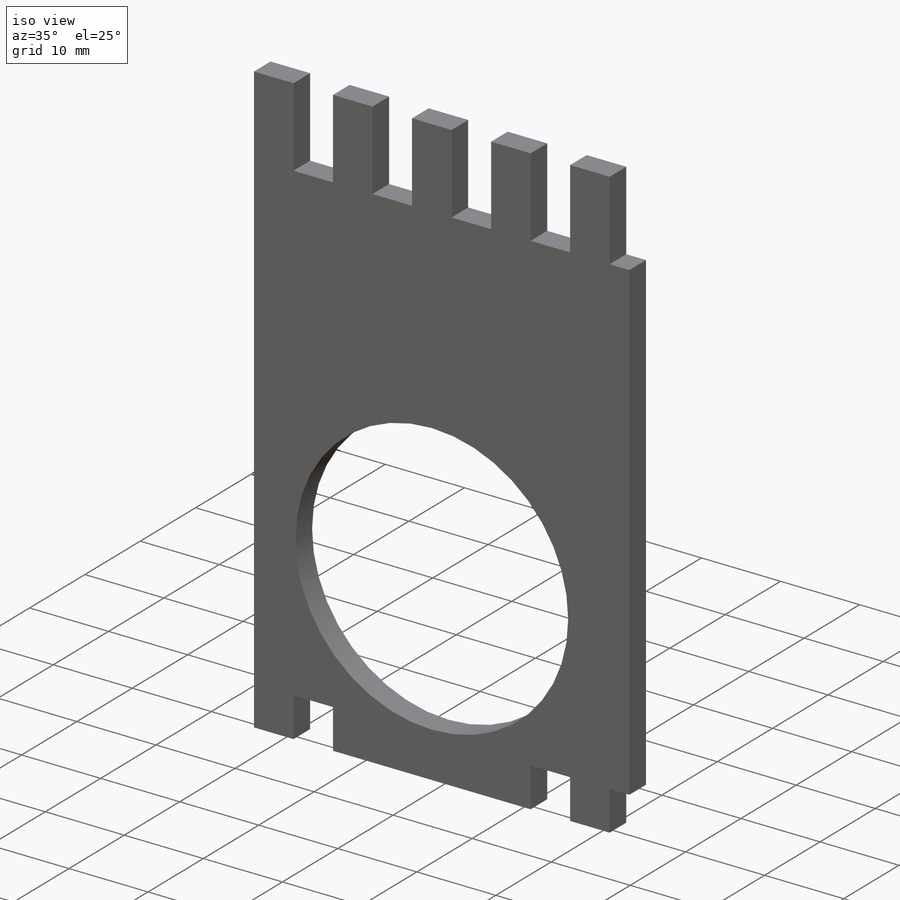
[diagram: iso view]
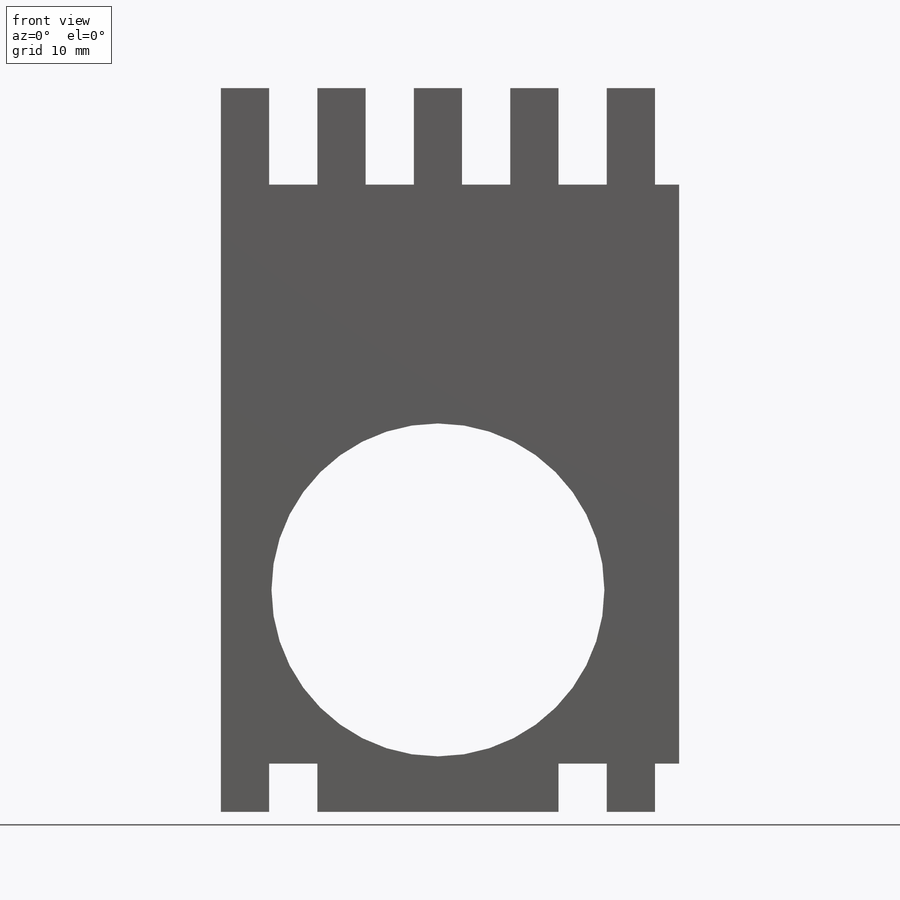
[diagram: front view]
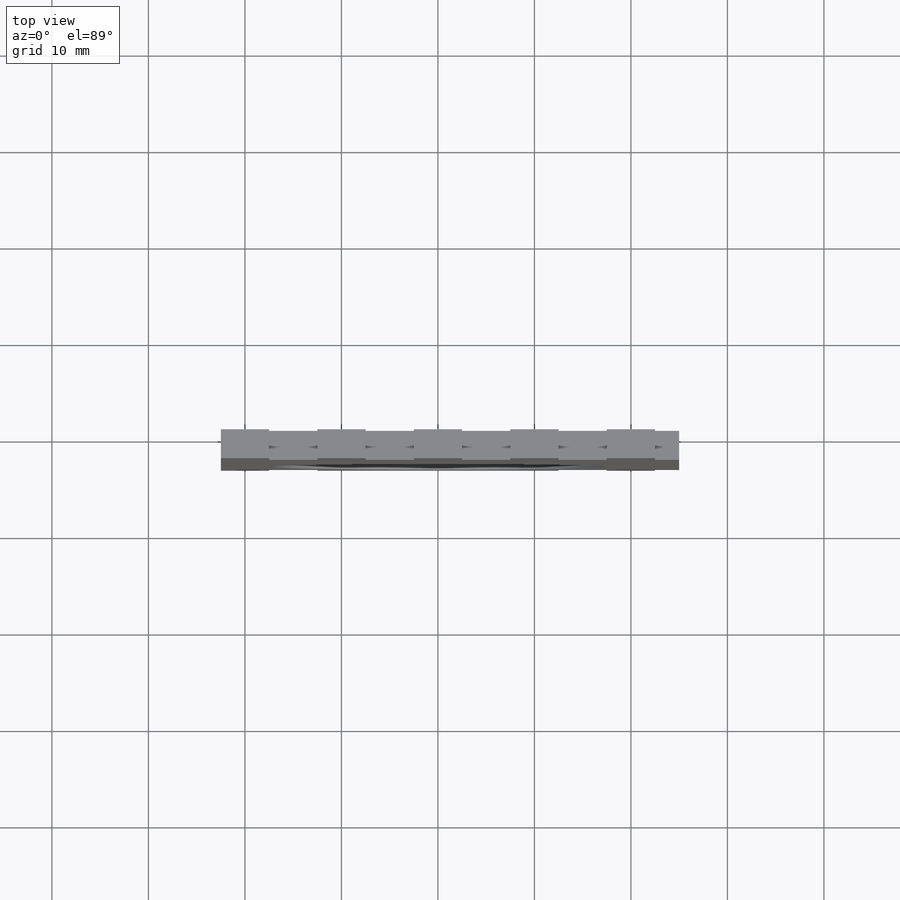
[diagram: top view]
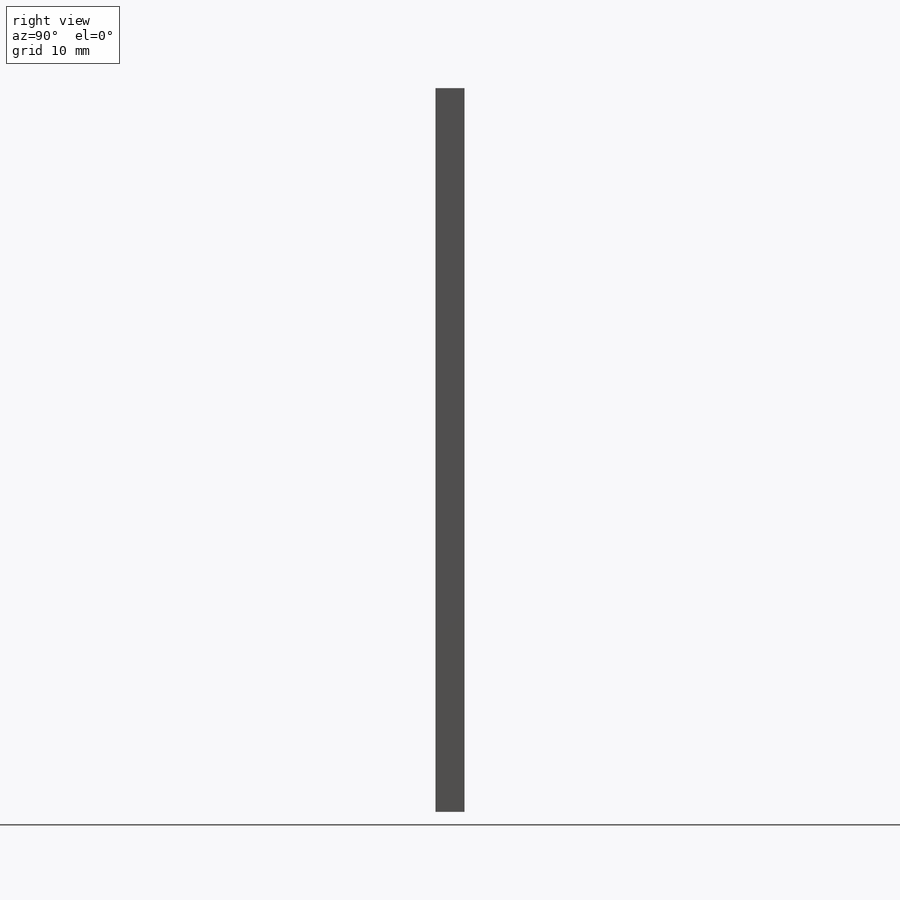
[diagram: right view]
SOLIDWORKS PART (.sldprt)
format: sldprt  version: not decoded by parser v0  size: 379,904 bytes
history: native  units: mm
features: sketch x5, plane x3, extrude x3, cut_extrude x2, material x1, pattern_linear x1 (+10 scaffold rows collapsed)
feature tree (25):
  scaffold x10  (default folders/planes/origin — collapsed)
  material  "Balsa"
  plane  "Plan de face"
  plane  "Plan de dessus"
  plane  "Plan de droite"
  sketch  "Esquisse3"  dims[c1.D1=45.0mm c1.D5=17.05mm c2.D1=35.0mm c2.D2=50.0mm c2.D3=50.0mm c3.D2=25.0mm c3.D3=50.0mm c3.D4=30.0mm c3.D5=60.0mm c3.D6=30.0mm c3.D1=20.0mm c4.D2=~49.63154mm c5.D2=90.0deg c6.D2=25.0mm c6.D3=50.0mm c6.D4=60.0mm]
  extrude  "Boss.-Extru.12"  Depth=3mm
  sketch  "Esquisse4"  dims[D1=34.5mm D2=25.0mm D3=18.0mm]
  cut_extrude  "Enlèv. mat.-Extru.1"  Depth=5mm
  sketch  "Esquisse5"  dims[D1=10.0mm D2=5.0mm D3=2.5mm D4=5.0mm D5=5.0mm D6=2.5mm]
  extrude  "Boss.-Extru.13"  Depth=3mm
  pattern_linear  "Répétition linéaire1"  Count1=5 Count2=1 Spacing1=10mm Spacing2=10mm
  sketch  "Esquisse6"
  extrude  "Boss.-Extru.14"  Depth=3mm
  sketch  "Esquisse7"
  cut_extrude  "Enlèv. mat.-Extru.2"  Depth=10mm
decode coverage: 9 of 11 modeling features carry decoded parameters
note: ~ marks probable driven/reference dimensions
note: suppression state not decoded; provenance and decode notes live in map.json
